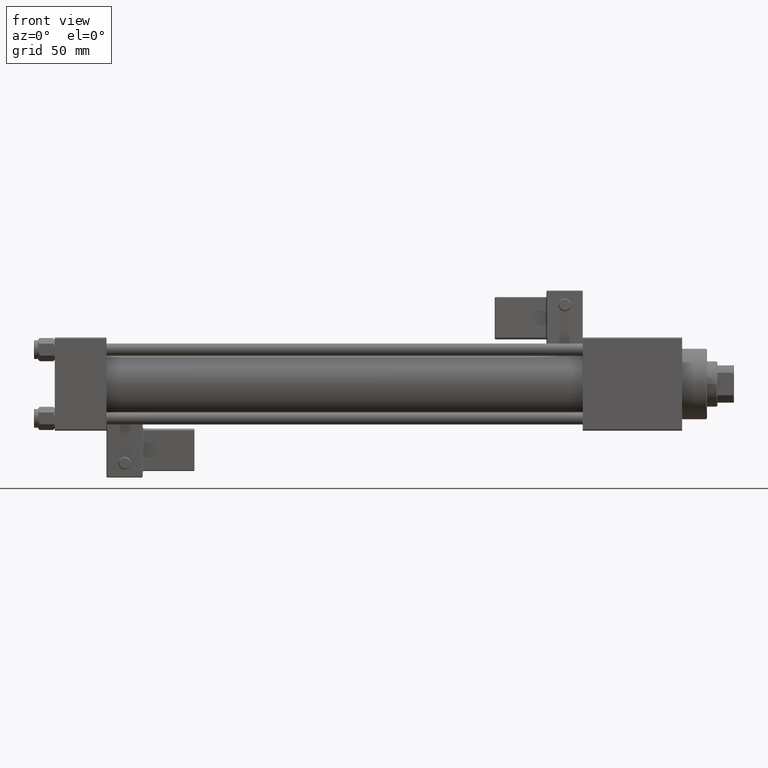
[diagram: clean part render]
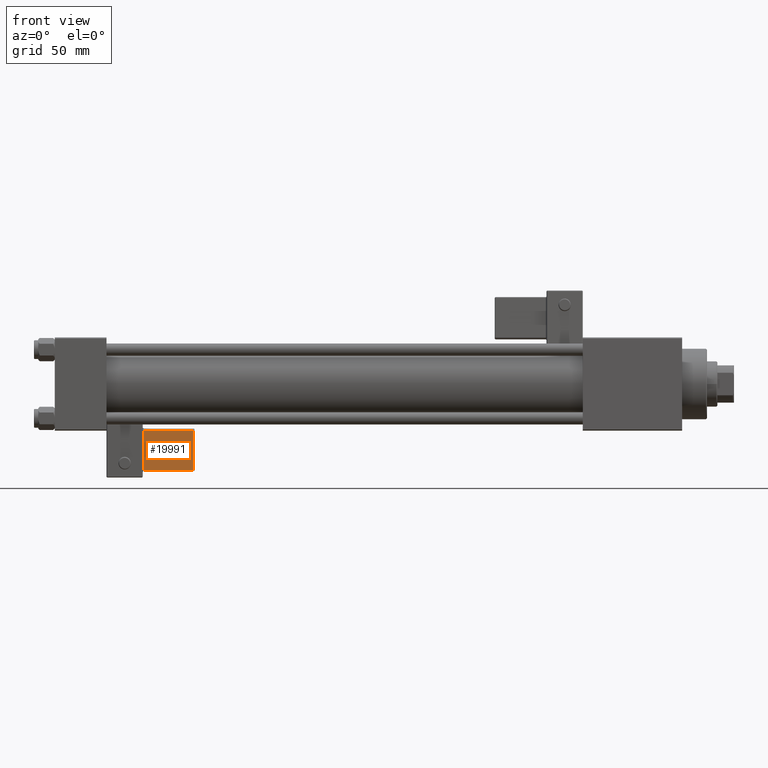
[diagram: same view with one face highlighted and labeled with its STEP entity id]
A machine part, front view. The second image highlights one B-rep face of the part: STEP entity #19991.
In plain terms, the highlighted planar face has unit normal (0, 0.9994, 0.0353).
Its self-contained STEP definition (entity closure, byte-faithful):
#88 = DIRECTION ( 'NONE',  ( -1.734723475976807341E-16, -0.000000000000000000, 1.000000000000000000 ) ) ;
#5716 = LINE ( 'NONE', #13867, #24691 ) ;
#6962 = EDGE_CURVE ( 'NONE', #49890, #52144, #5716, .T. ) ;
#11204 = ORIENTED_EDGE ( 'NONE', *, *, #47154, .T. ) ;
#12454 = DIRECTION ( 'NONE',  ( -1.000000000000000000, 0.000000000000000000, -1.334402673828313339E-16 ) ) ;
#12619 = DIRECTION ( 'NONE',  ( 1.000000000000000000, -0.000000000000000000, 1.334402673828313339E-16 ) ) ;
#13867 = CARTESIAN_POINT ( 'NONE',  ( 9.250000000000005329, -30.25000000000000000, 2.000000000000001776 ) ) ;
#15987 = LINE ( 'NONE', #24698, #20273 ) ;
#16635 = LINE ( 'NONE', #20978, #19774 ) ;
#17777 = CARTESIAN_POINT ( 'NONE',  ( 9.250000000000001776, -30.25000000000000000, 21.50000000000000000 ) ) ;
#18753 = CARTESIAN_POINT ( 'NONE',  ( 33.75000000000000000, -30.25000000000000000, 22.00000000000000355 ) ) ;
#19330 = VERTEX_POINT ( 'NONE', #21504 ) ;
#19774 = VECTOR ( 'NONE', #88, 1000.000000000000000 ) ;
#19991 = ADVANCED_FACE ( 'NONE', ( #39190 ), #21771, .F. ) ;
#20077 = VECTOR ( 'NONE', #12619, 1000.000000000000000 ) ;
#20273 = VECTOR ( 'NONE', #12454, 1000.000000000000000 ) ;
#20978 = CARTESIAN_POINT ( 'NONE',  ( 33.24999999999999289, -30.25000000000000000, 22.00000000000000355 ) ) ;
#21504 = CARTESIAN_POINT ( 'NONE',  ( 33.24999999999999289, -30.25000000000000000, 2.500000000000006661 ) ) ;
#21771 = PLANE ( 'NONE',  #39093 ) ;
#22278 = ORIENTED_EDGE ( 'NONE', *, *, #31383, .T. ) ;
#22308 = DIRECTION ( 'NONE',  ( 0.000000000000000000, -0.000000000000000000, 1.000000000000000000 ) ) ;
#22456 = EDGE_CURVE ( 'NONE', #52144, #19330, #32780, .T. ) ;
#22839 = DIRECTION ( 'NONE',  ( -0.000000000000000000, 1.000000000000000000, 0.000000000000000000 ) ) ;
#23401 = EDGE_LOOP ( 'NONE', ( #31318, #35294, #11204, #22278 ) ) ;
#24691 = VECTOR ( 'NONE', #42722, 1000.000000000000000 ) ;
#24698 = CARTESIAN_POINT ( 'NONE',  ( 33.75000000000000000, -30.25000000000000000, 21.50000000000000000 ) ) ;
#27754 = CARTESIAN_POINT ( 'NONE',  ( 33.24999999999999289, -30.25000000000000000, 21.50000000000000000 ) ) ;
#31318 = ORIENTED_EDGE ( 'NONE', *, *, #6962, .T. ) ;
#31383 = EDGE_CURVE ( 'NONE', #43517, #49890, #15987, .T. ) ;
#32780 = LINE ( 'NONE', #45550, #20077 ) ;
#35294 = ORIENTED_EDGE ( 'NONE', *, *, #22456, .T. ) ;
#39093 = AXIS2_PLACEMENT_3D ( 'NONE', #18753, #22839, #22308 ) ;
#39190 = FACE_OUTER_BOUND ( 'NONE', #23401, .T. ) ;
#42722 = DIRECTION ( 'NONE',  ( 1.334402673828313339E-16, 0.000000000000000000, -1.000000000000000000 ) ) ;
#43517 = VERTEX_POINT ( 'NONE', #27754 ) ;
#44955 = CARTESIAN_POINT ( 'NONE',  ( 9.250000000000005329, -30.25000000000000000, 2.500000000000003109 ) ) ;
#45550 = CARTESIAN_POINT ( 'NONE',  ( 33.75000000000000000, -30.25000000000000000, 2.500000000000005773 ) ) ;
#47154 = EDGE_CURVE ( 'NONE', #19330, #43517, #16635, .T. ) ;
#49890 = VERTEX_POINT ( 'NONE', #17777 ) ;
#52144 = VERTEX_POINT ( 'NONE', #44955 ) ;